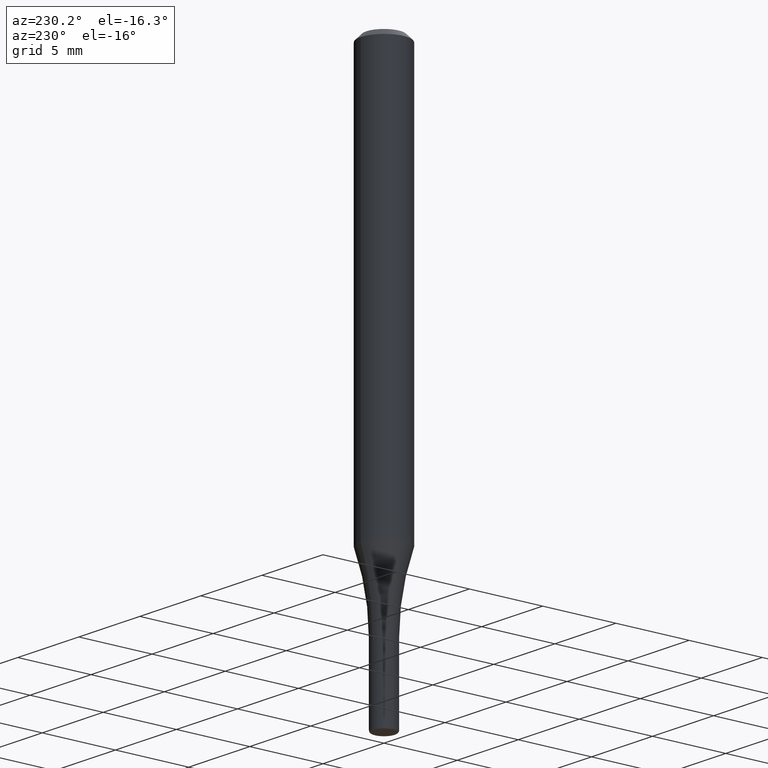
[diagram: clean part render]
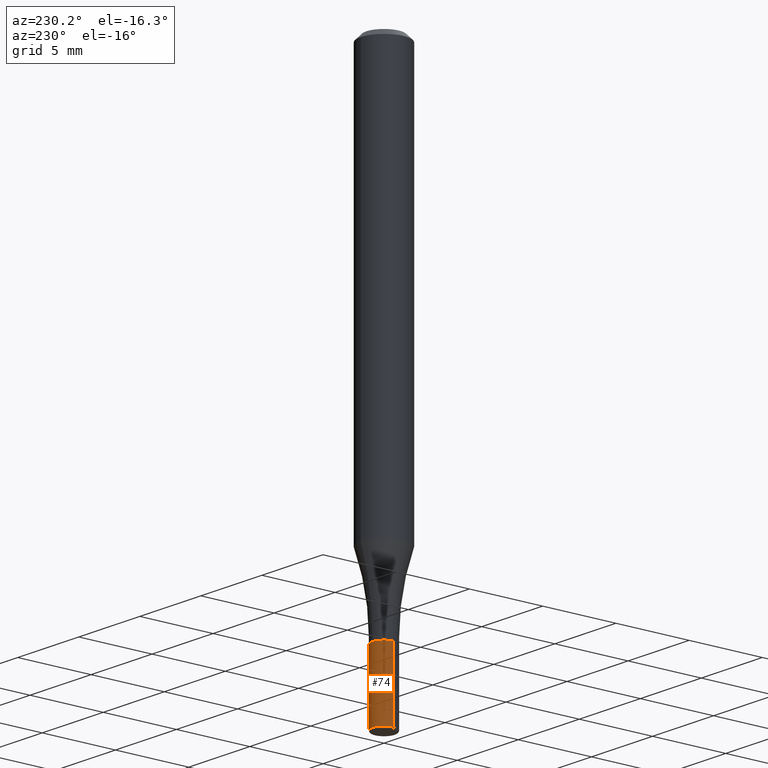
[diagram: same view with one face highlighted and labeled with its STEP entity id]
A machine part, auxiliary view. The second image highlights one B-rep face of the part: STEP entity #74.
In plain terms, the highlighted cylindrical surface (edge-blend (fillet) strip) has radius 0.7937 mm, axis along (-0, 0, 1).
Its self-contained STEP definition (entity closure, byte-faithful):
#1 = EDGE_CURVE ( 'NONE', #476, #91, #473, .T. ) ;
#47 = AXIS2_PLACEMENT_3D ( 'NONE', #427, #267, #71 ) ;
#54 = DIRECTION ( 'NONE',  ( -2.445468806185136877E-29, 3.491481338843145188E-15, 1.000000000000000000 ) ) ;
#57 = CIRCLE ( 'NONE', #387, 0.03124999999999985428 ) ;
#63 = FACE_OUTER_BOUND ( 'NONE', #165, .T. ) ;
#71 = DIRECTION ( 'NONE',  ( 1.000000000000000000, -6.982962677686266711E-15, 4.876176775795936353E-29 ) ) ;
#74 = ADVANCED_FACE ( 'NONE', ( #63 ), #308, .T. ) ;
#75 = LINE ( 'NONE', #83, #237 ) ;
#83 = CARTESIAN_POINT ( 'NONE',  ( -0.03124999999999989592, 2.220446049250305685E-16, -1.537167215704652977E-30 ) ) ;
#91 = VERTEX_POINT ( 'NONE', #352 ) ;
#121 = CARTESIAN_POINT ( 'NONE',  ( 0.03124999999999994102, -4.792058137562216623E-15, -1.310000000000000053 ) ) ;
#127 = LINE ( 'NONE', #339, #157 ) ;
#150 = VERTEX_POINT ( 'NONE', #229 ) ;
#157 = VECTOR ( 'NONE', #54, 39.37007874015748143 ) ;
#165 = EDGE_LOOP ( 'NONE', ( #183, #243, #423, #301 ) ) ;
#183 = ORIENTED_EDGE ( 'NONE', *, *, #221, .T. ) ;
#221 = EDGE_CURVE ( 'NONE', #150, #230, #57, .T. ) ;
#229 = CARTESIAN_POINT ( 'NONE',  ( 0.03124999999999985428, -5.437982185248198976E-15, -1.495000000000000329 ) ) ;
#230 = VERTEX_POINT ( 'NONE', #383 ) ;
#237 = VECTOR ( 'NONE', #403, 39.37007874015748143 ) ;
#243 = ORIENTED_EDGE ( 'NONE', *, *, #430, .T. ) ;
#257 = DIRECTION ( 'NONE',  ( -2.445468806185136597E-29, 3.491481338843145583E-15, 1.000000000000000000 ) ) ;
#267 = DIRECTION ( 'NONE',  ( -2.445468806185136597E-29, 3.491481338843145583E-15, 1.000000000000000000 ) ) ;
#278 = EDGE_CURVE ( 'NONE', #150, #476, #127, .T. ) ;
#301 = ORIENTED_EDGE ( 'NONE', *, *, #278, .F. ) ;
#308 = CYLINDRICAL_SURFACE ( 'NONE', #47, 0.03124999999999989592 ) ;
#339 = CARTESIAN_POINT ( 'NONE',  ( 0.03124999999999989592, -2.182175836776951198E-16, 1.523805242436225031E-30 ) ) ;
#352 = CARTESIAN_POINT ( 'NONE',  ( -0.03124999999999994102, -4.674757972802482629E-15, -1.310000000000000053 ) ) ;
#371 = DIRECTION ( 'NONE',  ( 1.000000000000000000, -6.982962677686264344E-15, 0.000000000000000000 ) ) ;
#383 = CARTESIAN_POINT ( 'NONE',  ( -0.03124999999999985428, -4.674757972802482629E-15, -1.495000000000000329 ) ) ;
#387 = AXIS2_PLACEMENT_3D ( 'NONE', #492, #421, #371 ) ;
#403 = DIRECTION ( 'NONE',  ( -2.445468806185136877E-29, 3.491481338843145188E-15, 1.000000000000000000 ) ) ;
#418 = DIRECTION ( 'NONE',  ( 1.000000000000000000, -6.982962677686276177E-15, 0.000000000000000000 ) ) ;
#421 = DIRECTION ( 'NONE',  ( -2.445468806185136597E-29, 3.491481338843145583E-15, 1.000000000000000000 ) ) ;
#423 = ORIENTED_EDGE ( 'NONE', *, *, #1, .F. ) ;
#427 = CARTESIAN_POINT ( 'NONE',  ( 0.000000000000000000, 0.000000000000000000, 0.000000000000000000 ) ) ;
#430 = EDGE_CURVE ( 'NONE', #230, #91, #75, .T. ) ;
#473 = CIRCLE ( 'NONE', #489, 0.03124999999999994102 ) ;
#476 = VERTEX_POINT ( 'NONE', #121 ) ;
#489 = AXIS2_PLACEMENT_3D ( 'NONE', #498, #257, #418 ) ;
#492 = CARTESIAN_POINT ( 'NONE',  ( 3.655975865246779683E-29, -5.219764601570503930E-15, -1.495000000000000329 ) ) ;
#498 = CARTESIAN_POINT ( 'NONE',  ( 3.203564136102528897E-29, -4.573840553884520788E-15, -1.310000000000000053 ) ) ;